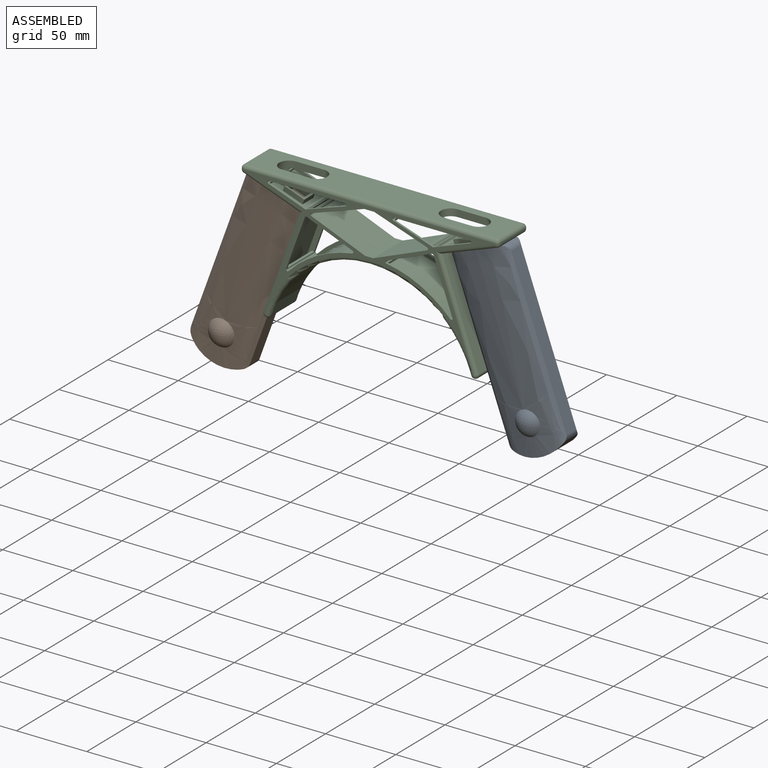
[diagram: assembled view]
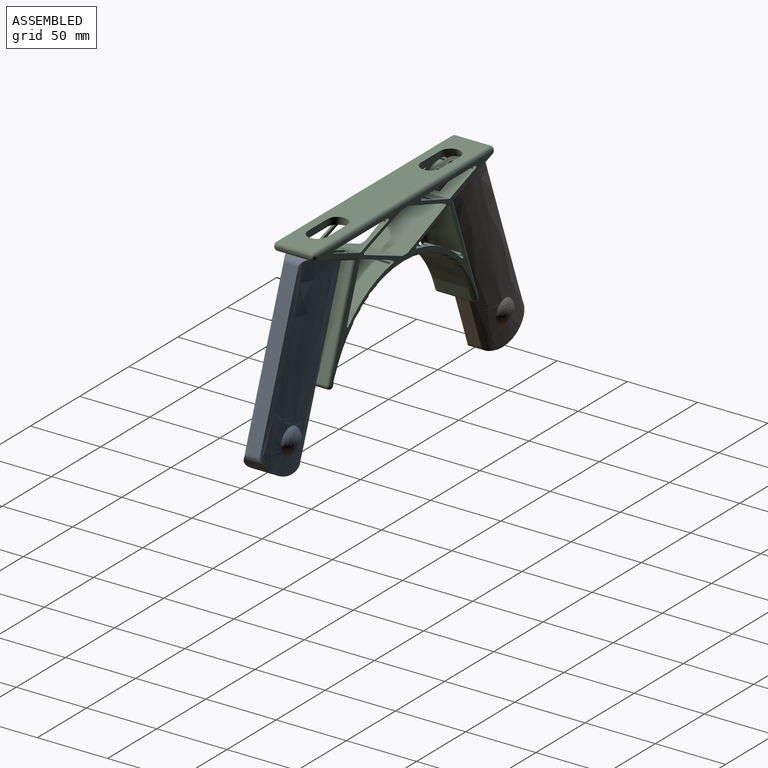
[diagram: assembled view, second angle]
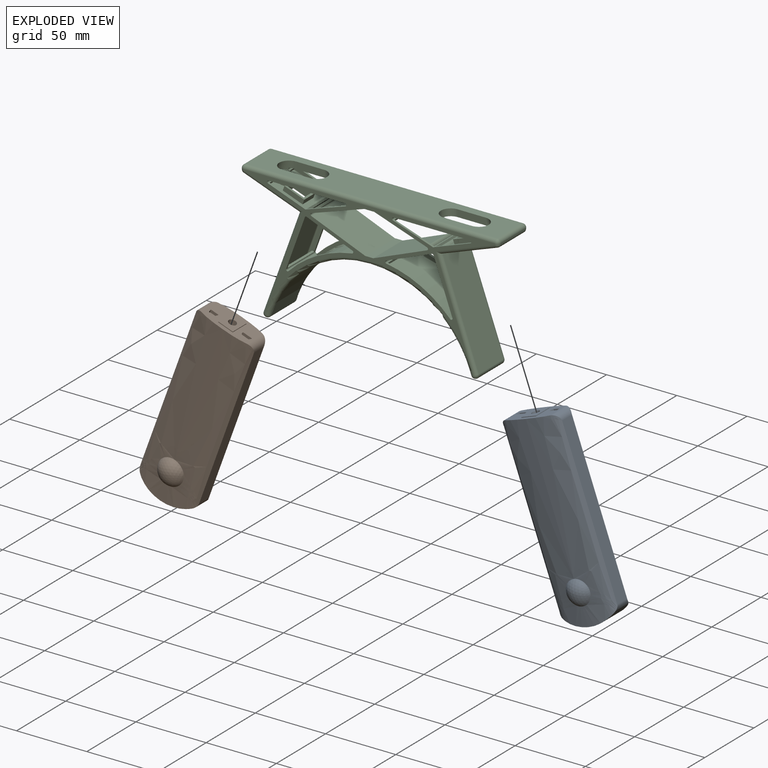
[diagram: exploded view]
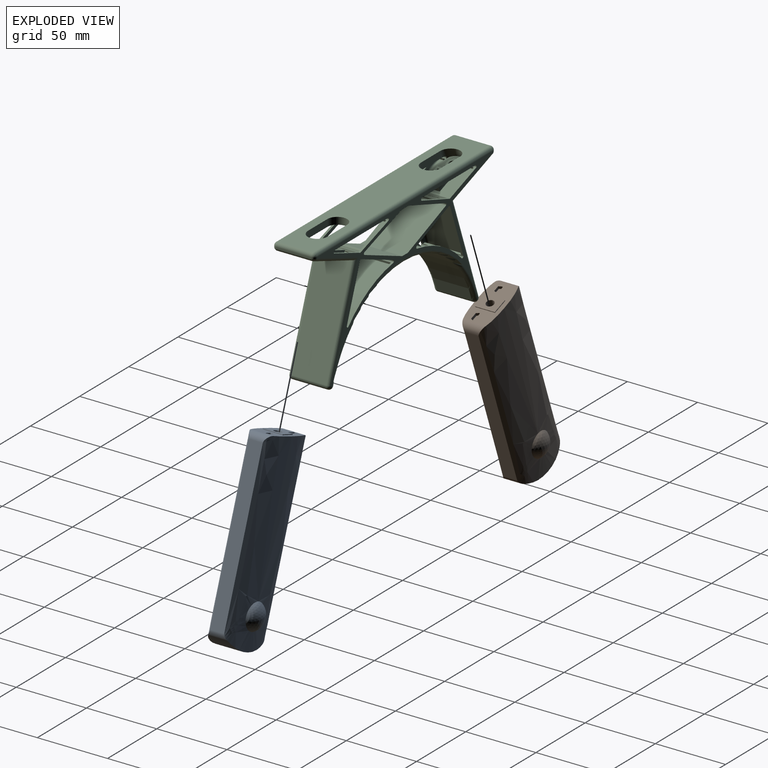
[diagram: exploded view, second angle]
ASSEMBLY  parts=3 mates=2
PART A: 39 faces, bbox 44x30x130.5 mm
  f0: plane 35.12x20mm, normal (0,0,-1), area 461.4mm2, adj f1,f2,f3,f4,f6,f11,f14,f15
  f1: extruded ~130x22mm, area 2824.6mm2, adj f0,f2,f5,f9,f10,f11,f13
  f2: extruded ~130x22mm, area 2824.6mm2, adj f0,f1,f5,f6,f7,f8,f13
  f3: extruded ~130x22mm, area 2807.5mm2, adj f0,f4,f5,f9,f10,f11,f12
  f4: extruded ~130x22mm, area 2807.5mm2, adj f0,f3,f5,f6,f7,f8,f12
  f5: cylinder r=34.25mm len=39.81mm, axis (0,1,0), area 780.4mm2, adj f1,f2,f3,f4,f8,f9
  f6: cylinder r=5mm len=16.43mm, axis (0,1,0), area 103.8mm2, adj f0,f2,f4,f7
  f7: plane 114.55x10mm, normal (1,0,0), area 1145.5mm2, adj f2,f4,f6,f8
  f8: cylinder r=5mm len=13.92mm, axis (0,1,0), area 56.8mm2, adj f2,f4,f5,f7
  f9: cylinder r=5mm len=13.92mm, axis (0,1,0), area 56.8mm2, adj f1,f3,f5,f10
  f10: plane 114.55x10mm, normal (-1,0,0), area 1145.5mm2, adj f1,f3,f9,f11
  f11: cylinder r=5mm len=16.43mm, axis (0,1,0), area 103.8mm2, adj f0,f1,f3,f10
  f12: sphere r=10.5mm, area 375.2mm2, adj f3,f4
  f13: sphere r=10.5mm, area 307.6mm2, adj f1,f2
  f14: plane 14x0.5mm, normal (1,0,0), area 7mm2, adj f0,f15,f18,f19
  f15: plane 11x0.5mm, normal (0,-1,0), area 5.5mm2, adj f0,f14,f16,f19
  f16: plane 14x0.5mm, normal (-1,0,0), area 7mm2, adj f0,f15,f18,f19
  f17: cylinder r=2.75mm len=5.5mm, axis (0,0,1), area 95mm2, adj f19,f20
  f18: plane 11x0.5mm, normal (0,1,0), area 5.5mm2, adj f0,f14,f16,f19
  f19: plane 14x11mm, normal (0,0,-1), area 130.2mm2, adj f14,f15,f16,f17,f18
  f20: plane 5.5x5.5mm, normal (0,0,-1), area 23.8mm2, adj f17
  f21: cylinder r=0.5mm len=2mm, axis (0,0,-1), area 1.8mm2, adj f0,f22,f28,f29
  f22: plane 2x2mm, normal (-0.97,0.26,0), area 4.1mm2, adj f0,f21,f23,f29
  f23: cylinder r=0.5mm len=2mm, axis (0,0,-1), area 1.3mm2, adj f0,f22,f24,f29
  f24: plane 3.63x2mm, normal (0,1,0), area 7.2mm2, adj f0,f23,f25,f29
  f25: cylinder r=0.5mm len=2mm, axis (0,0,-1), area 1.3mm2, adj f0,f24,f26,f29
  f26: plane 2x2mm, normal (0.97,0.26,0), area 4.1mm2, adj f0,f25,f27,f29
  f27: cylinder r=0.5mm len=2mm, axis (0,0,-1), area 1.8mm2, adj f0,f26,f28,f29
  f28: plane 4.7x2mm, normal (0,-1,0), area 9.4mm2, adj f0,f21,f27,f29
  f29: plane 5.7x3mm, normal (0,0,-1), area 15.3mm2, adj f21,f22,f23,f24,f25,f26,f27,f28
  f30: cylinder r=0.5mm len=2mm, axis (0,0,-1), area 2mm2, adj f0,f31,f37,f38
  f31: plane 2x1.5mm, normal (-0.91,0.42,0), area 3.3mm2, adj f0,f30,f32,f38
  f32: cylinder r=0.5mm len=2mm, axis (0,0,-1), area 1.1mm2, adj f0,f31,f33,f38
  f33: plane 4.53x2mm, normal (0,1,0), area 9.1mm2, adj f0,f32,f34,f38
  f34: cylinder r=0.5mm len=2mm, axis (0,0,-1), area 1.1mm2, adj f0,f33,f35,f38
  f35: plane 2x1.5mm, normal (0.91,0.42,0), area 3.3mm2, adj f0,f34,f36,f38
  f36: cylinder r=0.5mm len=2mm, axis (0,0,-1), area 2mm2, adj f0,f35,f37,f38
  f37: plane 5.93x2mm, normal (0,-1,0), area 11.9mm2, adj f0,f30,f36,f38
  f38: plane 6.93x2.5mm, normal (0,0,-1), area 15.5mm2, adj f30,f31,f32,f33,f34,f35,f36,f37
PART B: same geometry as A
PART C: 282 faces, bbox 183.8x30x96.7 mm
  f0: plane 32.48x13.03mm, normal (-0.37,0,-0.93), area 52.5mm2, adj f29,f92,f93,f183
  f1: plane 28.21x9.56mm, normal (-0.32,0,0.95), area 44.7mm2, adj f29,f87,f88,f183
  f2: plane 37.55x12.73mm, normal (0.32,0,-0.95), area 59.5mm2, adj f29,f102,f105,f183
  f3: plane 37.55x12.73mm, normal (-0.32,0,-0.95), area 59.5mm2, adj f29,f101,f106,f183
  f4: plane 28.21x9.56mm, normal (0.32,0,0.95), area 44.7mm2, adj f29,f117,f118,f183
  f5: plane 32.48x13.03mm, normal (0.37,0,-0.93), area 52.5mm2, adj f29,f110,f111,f183
  f6: plane 36.81x13.4mm, normal (-0.94,0,-0.34), area 58.8mm2, adj f29,f111,f112,f183
  f7: plane 25.46x9.27mm, normal (-0.34,0,0.94), area 40.6mm2, adj f18,f29,f115,f183
  f8: plane 14.1x11mm, normal (-0.34,0,0.94), area 69mm2, adj f123,f124,f125,f126,f267,f268,f269,f270
  f9: plane 9x8.46mm, normal (-0.34,0,0.94), area 35.3mm2, adj f19,f173
  f10: plane 36.81x13.4mm, normal (0.94,0,-0.34), area 58.8mm2, adj f29,f92,f94,f183
  f11: plane 25.46x9.27mm, normal (0.34,0,0.94), area 40.6mm2, adj f21,f29,f85,f183
  f12: plane 9x8.46mm, normal (0.34,0,0.94), area 35.3mm2, adj f22,f176
  f13: plane 14.1x11mm, normal (0.34,0,0.94), area 69mm2, adj f119,f120,f121,f122,f263,f264,f265,f266
  f14: cylinder r=80mm len=45.31mm, axis (0,-1,0), area 77.9mm2, adj f29,f93,f94,f183
  f15: cylinder r=80mm len=45.31mm, axis (0,-1,0), area 77.9mm2, adj f29,f110,f112,f183
  f16: cylinder r=7mm len=14mm, axis (0.34,0,-0.94), area 134.4mm2, adj f17,f18,f23,f116,f128,f130,f258
  f17: cylinder r=1mm len=8.72mm, axis (0,-1,0), area 24mm2, adj f16,f27,f114,f116,f154,f258
  f18: cylinder r=1mm len=8.72mm, axis (0,-1,0), area 24mm2, adj f7,f16,f29,f116,f155,f258
  f19: cylinder r=3mm len=7.35mm, axis (0.34,0,-0.94), area 94.2mm2, adj f9,f35
  f20: cylinder r=1mm len=8.72mm, axis (0,-1,0), area 24mm2, adj f25,f26,f27,f127,f150,f180
  f21: cylinder r=1mm len=8.72mm, axis (0,-1,0), area 24mm2, adj f11,f25,f29,f127,f149,f180
  f22: cylinder r=3mm len=7.35mm, axis (-0.34,0,-0.94), area 94.2mm2, adj f12,f24
  f23: plane 178.81x25mm, normal (0,0,1), area 3601.2mm2, adj f16,f41,f44,f48,f49,f127,f129,f131
  f24: plane 39.7x25mm, normal (-0.34,0,-0.94), area 932mm2, adj f22,f38,f58,f64,f67,f119,f120,f121
  f25: plane 54.3x30.02mm, normal (0,0,-1), area 1215mm2, adj f20,f21,f27,f29,f87,f127,f133,f134
  f26: plane 25.46x9.27mm, normal (0.34,0,0.94), area 40.6mm2, adj f20,f27,f85,f181
  f27: plane 178.81x86.04mm, normal (0,1,0), area 1739.9mm2, adj f17,f20,f25,f26,f47,f48,f56,f57
  f28: plane 3.25x1.17mm, normal (0,-1,0), area 0.1mm2, adj f60,f69,f79
  f29: plane 178.81x86.04mm, normal (0,-1,0), area 1739.9mm2, adj f0,f1,f2,f3,f4,f5,f6,f7
  f30: plane 3.25x1.17mm, normal (0,1,0), area 0.1mm2, adj f62,f71,f80
  f31: plane 25x0.07mm, normal (-0.34,0,-0.94), area 1.9mm2, adj f73,f78,f81,f84
  f32: cylinder r=75mm len=143.09mm, axis (0,1,0), area 4747.5mm2, adj f70,f79,f80,f84
  f33: plane 25x0.07mm, normal (0.34,0,-0.94), area 1.9mm2, adj f61,f69,f70,f71
  f34: plane 70.86x25.79mm, normal (0.94,0,0.34), area 1885.2mm2, adj f35,f60,f61,f62
  f35: plane 39.7x25mm, normal (0.34,0,-0.94), area 932mm2, adj f19,f34,f46,f55,f56,f123,f124,f125
  f36: plane 25x0.75mm, normal (1,0,0), area 18.7mm2, adj f41,f45,f46,f47
  f37: plane 25x0.75mm, normal (-1,0,0), area 18.7mm2, adj f49,f54,f57,f58
  f38: plane 70.86x25.79mm, normal (-0.94,0,0.34), area 1885.2mm2, adj f24,f68,f72,f73
  f39: plane 3.25x1.17mm, normal (0,-1,0), area 0.1mm2, adj f68,f78,f79
  f40: plane 3.25x1.17mm, normal (0,1,0), area 0.1mm2, adj f72,f80,f81
  f41: cylinder r=2.5mm len=25mm, axis (0,1,0), area 98.2mm2, adj f23,f36,f42,f43
  f42: sphere r=2.5mm, area 9.8mm2, adj f41,f44,f45
  f43: sphere r=2.5mm, area 9.8mm2, adj f41,f47,f48
  f44: cylinder r=2.5mm len=178.81mm, axis (1,0,0), area 702.2mm2, adj f23,f29,f42,f50
  f45: cylinder r=2.5mm len=2.5mm, axis (0,0,-1), area 2.9mm2, adj f29,f36,f42,f51
  f46: cylinder r=2.5mm len=25mm, axis (0,-1,0), area 76.4mm2, adj f35,f36,f51,f52
  f47: cylinder r=2.5mm len=2.5mm, axis (0,0,1), area 2.9mm2, adj f27,f36,f43,f52
  f48: cylinder r=2.5mm len=178.81mm, axis (-1,0,0), area 702.2mm2, adj f23,f27,f43,f53
  f49: cylinder r=2.5mm len=25mm, axis (0,-1,0), area 98.2mm2, adj f23,f37,f50,f53
  f50: sphere r=2.5mm, area 9.8mm2, adj f44,f49,f54
  f51: sphere r=2.5mm, area 7.6mm2, adj f45,f46,f55
  f52: sphere r=2.5mm, area 7.6mm2, adj f46,f47,f56
  f53: sphere r=2.5mm, area 9.8mm2, adj f48,f49,f57
  f54: cylinder r=2.5mm len=2.5mm, axis (0,0,1), area 2.9mm2, adj f29,f37,f50,f59
  f55: cylinder r=2.5mm len=42.91mm, axis (-0.94,0,-0.34), area 169.5mm2, adj f29,f35,f51,f60
  f56: cylinder r=2.5mm len=42.91mm, axis (0.94,0,0.34), area 169.5mm2, adj f27,f35,f52,f62
  f57: cylinder r=2.5mm len=2.5mm, axis (0,0,-1), area 2.9mm2, adj f27,f37,f53,f63
  f58: cylinder r=2.5mm len=25mm, axis (0,-1,0), area 76.4mm2, adj f24,f37,f59,f63
  f59: sphere r=2.5mm, area 7.6mm2, adj f54,f58,f64
  f60: cylinder r=2.5mm len=74.06mm, axis (0.34,0,-0.94), area 299.7mm2, adj f28,f29,f34,f55,f65
  f61: cylinder r=2.5mm len=25mm, axis (0,1,0), area 98.2mm2, adj f33,f34,f65,f66
  f62: cylinder r=2.5mm len=74.06mm, axis (-0.34,0,0.94), area 299.7mm2, adj f27,f30,f34,f56,f66
  f63: sphere r=2.5mm, area 7.6mm2, adj f57,f58,f67
  f64: cylinder r=2.5mm len=42.91mm, axis (-0.94,0,0.34), area 169.5mm2, adj f24,f29,f59,f68
  f65: sphere r=2.5mm, area 9.8mm2, adj f60,f61,f69
  f66: sphere r=2.5mm, area 9.8mm2, adj f61,f62,f71
  f67: cylinder r=2.5mm len=42.91mm, axis (0.94,0,-0.34), area 169.5mm2, adj f24,f27,f63,f72
  f68: cylinder r=2.5mm len=74.06mm, axis (0.34,0,0.94), area 299.7mm2, adj f29,f38,f39,f64,f74
  f69: cylinder r=2.5mm len=2.5mm, axis (-0.94,0,-0.34), area 0.3mm2, adj f28,f33,f65,f75
  f70: cylinder r=2.5mm len=25mm, axis (0,1,0), area 100.9mm2, adj f32,f33,f75,f76
  f71: cylinder r=2.5mm len=2.5mm, axis (0.94,0,0.34), area 0.3mm2, adj f30,f33,f66,f76
  f72: cylinder r=2.5mm len=74.06mm, axis (-0.34,0,-0.94), area 299.7mm2, adj f27,f38,f40,f67,f77
  f73: cylinder r=2.5mm len=25mm, axis (0,1,0), area 98.2mm2, adj f31,f38,f74,f77
  f74: sphere r=2.5mm, area 9.8mm2, adj f68,f73,f78
  f75: sphere r=2.5mm, area 10.1mm2, adj f69,f70,f79
  f76: sphere r=2.5mm, area 10.1mm2, adj f70,f71,f80
  f77: sphere r=2.5mm, area 9.8mm2, adj f72,f73,f81
  f78: cylinder r=2.5mm len=2.5mm, axis (-0.94,0,0.34), area 0.3mm2, adj f31,f39,f74,f82
  f79: torus R=77.5mm, axis (0,-1,0), area 754.8mm2, adj f28,f29,f32,f39,f75,f82
  f80: torus R=77.5mm, axis (0,-1,0), area 754.8mm2, adj f27,f30,f32,f40,f76,f83
  f81: cylinder r=2.5mm len=2.5mm, axis (0.94,0,-0.34), area 0.3mm2, adj f31,f40,f77,f83
  f82: sphere r=2.5mm, area 10.1mm2, adj f78,f79,f84
  f83: sphere r=2.5mm, area 10.1mm2, adj f80,f81,f84
  f84: cylinder r=2.5mm len=25mm, axis (0,1,0), area 100.9mm2, adj f31,f32,f82,f83
  f85: cylinder r=2.5mm len=30mm, axis (0,1,0), area 14.7mm2, adj f11,f26,f27,f29,f88,f148
  f86: plane 28.21x9.56mm, normal (-0.32,0,0.95), area 44.7mm2, adj f27,f87,f88,f181
  f87: cylinder r=1mm len=30mm, axis (0,-1,0), area 84.4mm2, adj f1,f25,f27,f29,f86,f166
  f88: cylinder r=1mm len=30mm, axis (0,1,0), area 26.2mm2, adj f1,f27,f29,f85,f86,f167
  f89: plane 32.48x13.03mm, normal (-0.37,0,-0.93), area 52.5mm2, adj f27,f92,f93,f181
  f90: cylinder r=80mm len=45.31mm, axis (0,-1,0), area 77.9mm2, adj f27,f93,f94,f181
  f91: plane 36.81x13.4mm, normal (0.94,0,-0.34), area 58.8mm2, adj f27,f92,f94,f181
  f92: cylinder r=1mm len=30mm, axis (0,-1,0), area 48.1mm2, adj f0,f10,f27,f29,f89,f91,f152,f168
  f93: cylinder r=1mm len=30mm, axis (0,-1,0), area 78.2mm2, adj f0,f14,f27,f29,f89,f90,f146,f169
  f94: cylinder r=1mm len=30mm, axis (0,-1,0), area 81.7mm2, adj f10,f14,f27,f29,f90,f91,f147,f151
  f95: cylinder r=80mm len=30mm, axis (0,-1,0), area 152.9mm2, adj f27,f29,f103,f104
  f96: plane 30x6.63mm, normal (0,0,-1), area 198.9mm2, adj f27,f29,f101,f102
  f97: plane 38.29x30mm, normal (-0.37,0,0.93), area 1237.6mm2, adj f27,f29,f104,f106
  f98: plane 37.55x12.73mm, normal (-0.32,0,-0.95), area 59.5mm2, adj f27,f101,f106,f181
  f99: plane 37.55x12.73mm, normal (0.32,0,-0.95), area 59.5mm2, adj f27,f102,f105,f181
  f100: plane 38.29x30mm, normal (0.37,0,0.93), area 1237.6mm2, adj f27,f29,f103,f105
  f101: cylinder r=1mm len=30mm, axis (0,-1,0), area 9.8mm2, adj f3,f27,f29,f96,f98,f162
  f102: cylinder r=1mm len=30mm, axis (0,1,0), area 9.8mm2, adj f2,f27,f29,f96,f99,f165
  f103: cylinder r=1mm len=30mm, axis (0,-1,0), area 12.4mm2, adj f27,f29,f95,f100
  f104: cylinder r=1mm len=30mm, axis (0,-1,0), area 12.4mm2, adj f27,f29,f95,f97
  f105: cylinder r=1mm len=30mm, axis (0,-1,0), area 73mm2, adj f2,f27,f29,f99,f100,f164
  f106: cylinder r=1mm len=30mm, axis (0,-1,0), area 73mm2, adj f3,f27,f29,f97,f98,f163
  f107: plane 32.48x13.03mm, normal (0.37,0,-0.93), area 52.5mm2, adj f27,f110,f111,f181
  f108: plane 36.81x13.4mm, normal (-0.94,0,-0.34), area 58.8mm2, adj f27,f111,f112,f181
  f109: cylinder r=80mm len=45.31mm, axis (0,-1,0), area 77.9mm2, adj f27,f110,f112,f181
  f110: cylinder r=1mm len=30mm, axis (0,-1,0), area 78.2mm2, adj f5,f15,f27,f29,f107,f109,f145,f158
  f111: cylinder r=1mm len=30mm, axis (0,1,0), area 48.1mm2, adj f5,f6,f27,f29,f107,f108,f156,f159
  f112: cylinder r=1mm len=30mm, axis (0,-1,0), area 81.7mm2, adj f6,f15,f27,f29,f108,f109,f144,f157
  f113: plane 28.21x9.56mm, normal (0.32,0,0.95), area 44.7mm2, adj f27,f117,f118,f181
  f114: plane 25.46x9.27mm, normal (-0.34,0,0.94), area 40.6mm2, adj f17,f27,f115,f181
  f115: cylinder r=2.5mm len=30mm, axis (0,1,0), area 14.7mm2, adj f7,f27,f29,f114,f118,f153
  f116: plane 54.3x30.02mm, normal (0,0,-1), area 1215mm2, adj f16,f17,f18,f27,f29,f117,f128,f129
  f117: cylinder r=1mm len=30mm, axis (0,1,0), area 84.4mm2, adj f4,f27,f29,f113,f116,f161
  f118: cylinder r=1mm len=30mm, axis (0,1,0), area 26.2mm2, adj f4,f27,f29,f113,f115,f160
  f119: plane 8x4.7mm, normal (0.94,0,-0.34), area 40mm2, adj f13,f24,f120,f122
  f120: plane 12.99x8.8mm, normal (0,1,0), area 60mm2, adj f13,f24,f119,f121
  f121: plane 8x4.7mm, normal (-0.94,0,0.34), area 40mm2, adj f13,f24,f120,f122
  f122: plane 12.99x8.8mm, normal (0,-1,0), area 60mm2, adj f13,f24,f119,f121
  f123: plane 12.99x8.8mm, normal (0,1,0), area 60mm2, adj f8,f35,f124,f125
  f124: plane 8x4.7mm, normal (-0.94,0,-0.34), area 40mm2, adj f8,f35,f123,f126
  f125: plane 8x4.7mm, normal (0.94,0,0.34), area 40mm2, adj f8,f35,f123,f126
  f126: plane 12.99x8.8mm, normal (0,-1,0), area 60mm2, adj f8,f35,f124,f125
  f127: cylinder r=7mm len=14mm, axis (-0.34,0,-0.94), area 134.4mm2, adj f20,f21,f23,f25,f133,f134,f180
  f128: cylinder r=7mm len=5mm, axis (0,0,1), area 2.2mm2, adj f16,f116,f131
  f129: plane 19.69x5mm, normal (0,1,0), area 98.4mm2, adj f23,f116,f130,f132
  f130: cylinder r=7mm len=5mm, axis (0,0,1), area 2.2mm2, adj f16,f116,f129
  f131: plane 19.69x5mm, normal (0,-1,0), area 98.4mm2, adj f23,f116,f128,f132
  f132: cylinder r=7mm len=14mm, axis (0,0,1), area 110mm2, adj f23,f116,f129,f131
  f133: cylinder r=7mm len=5mm, axis (0,0,1), area 2.2mm2, adj f25,f127,f135
  f134: cylinder r=7mm len=5mm, axis (0,0,1), area 2.2mm2, adj f25,f127,f136
  f135: plane 19.69x5mm, normal (0,-1,0), area 98.4mm2, adj f23,f25,f133,f137
  f136: plane 19.69x5mm, normal (0,1,0), area 98.4mm2, adj f23,f25,f134,f137
  f137: cylinder r=7mm len=14mm, axis (0,0,1), area 110mm2, adj f23,f25,f135,f136
  f138: plane 30.15x27mm, normal (0.37,0,-0.93), area 877.1mm2, adj f158,f181,f183,f254
  f139: plane 27x6.75mm, normal (-0.37,0,-0.93), area 196.2mm2, adj f181,f183,f243,f251
  f140: cylinder r=8.5mm len=2.67mm, axis (-0.34,0,-0.94), area 2.7mm2, adj f149,f175,f180
  f141: cylinder r=8.5mm len=2.67mm, axis (-0.34,0,-0.94), area 2.7mm2, adj f150,f174,f180
  f142: cylinder r=8.5mm len=2.67mm, axis (0.34,0,-0.94), area 2.7mm2, adj f154,f171,f258
  f143: cylinder r=8.5mm len=2.67mm, axis (0.34,0,-0.94), area 2.7mm2, adj f155,f172,f258
  f144: plane 27x1.08mm, normal (-0.69,0,0.72), area 40.5mm2, adj f112,f181,f183,f257
  f145: plane 27x1.48mm, normal (0.99,0,-0.15), area 40.5mm2, adj f110,f181,f183,f255
  f146: plane 27x1.48mm, normal (-0.99,0,-0.15), area 40.5mm2, adj f93,f181,f183,f243
  f147: plane 27x1.08mm, normal (0.69,0,0.72), area 40.5mm2, adj f94,f181,f183,f244
  f148: plane 27x1.41mm, normal (-0.94,0,0.34), area 40.5mm2, adj f85,f181,f183,f239
  f149: plane 5.26x1.41mm, normal (0.94,0,-0.34), area 7.9mm2, adj f21,f140,f175,f183
  f150: plane 5.26x1.41mm, normal (0.94,0,-0.34), area 7.9mm2, adj f20,f141,f174,f181
  f151: plane 27x1.41mm, normal (0.34,0,0.94), area 40.5mm2, adj f94,f181,f183,f244
  f152: plane 27x1.41mm, normal (-0.34,0,-0.94), area 40.5mm2, adj f92,f181,f183,f242
  f153: plane 27x1.41mm, normal (0.94,0,0.34), area 40.5mm2, adj f115,f181,f183,f259
  f154: plane 5.26x1.41mm, normal (-0.94,0,-0.34), area 7.9mm2, adj f17,f142,f171,f181
  f155: plane 5.26x1.41mm, normal (-0.94,0,-0.34), area 7.9mm2, adj f18,f143,f172,f183
  f156: plane 27x1.41mm, normal (0.34,0,-0.94), area 40.5mm2, adj f111,f181,f183,f256
  f157: plane 27x1.41mm, normal (-0.34,0,0.94), area 40.5mm2, adj f112,f181,f183,f257
  f158: plane 27x0.93mm, normal (0.93,0,0.37), area 27mm2, adj f110,f138,f181,f183
  f159: plane 27x1.39mm, normal (-0.93,0,-0.37), area 40.5mm2, adj f111,f181,f183,f256
  f160: plane 27x1.42mm, normal (-0.95,0,0.32), area 40.5mm2, adj f118,f181,f183,f262
  f161: plane 27x1.42mm, normal (0.95,0,-0.32), area 40.5mm2, adj f117,f181,f183,f261
  f162: plane 27x1.42mm, normal (0.95,0,-0.32), area 40.5mm2, adj f101,f181,f183,f249
  f163: plane 27x1.42mm, normal (-0.95,0,0.32), area 40.5mm2, adj f106,f181,f183,f254
  f164: plane 27x1.42mm, normal (0.95,0,0.32), area 40.5mm2, adj f105,f181,f183,f253
  f165: plane 27x1.42mm, normal (-0.95,0,-0.32), area 40.5mm2, adj f102,f181,f183,f250
  f166: plane 27x1.42mm, normal (-0.95,0,-0.32), area 40.5mm2, adj f87,f181,f183,f240
  f167: plane 27x1.42mm, normal (0.95,0,0.32), area 40.5mm2, adj f88,f181,f183,f241
  f168: plane 27x1.39mm, normal (0.93,0,-0.37), area 40.5mm2, adj f92,f181,f183,f242
  f169: plane 27x0.93mm, normal (-0.93,0,0.37), area 27mm2, adj f93,f181,f183,f248
  f170: cylinder r=8.5mm len=17mm, axis (0.34,0,-0.94), area 91mm2, adj f171,f172,f177,f258,f260,f272,f274
  f171: cylinder r=2.5mm len=6.35mm, axis (0,-1,0), area 41.5mm2, adj f142,f154,f170,f181,f260
  f172: cylinder r=2.5mm len=6.35mm, axis (0,-1,0), area 41.5mm2, adj f143,f155,f170,f183,f260
  f173: cylinder r=4.5mm len=9.65mm, axis (0.34,0,-0.94), area 99mm2, adj f9,f189
  f174: cylinder r=2.5mm len=6.35mm, axis (0,-1,0), area 41.5mm2, adj f141,f150,f179,f181,f271
  f175: cylinder r=2.5mm len=6.35mm, axis (0,-1,0), area 41.5mm2, adj f140,f149,f179,f183,f271
  f176: cylinder r=4.5mm len=9.65mm, axis (-0.34,0,-0.94), area 99mm2, adj f12,f178
  f177: plane 178.81x25mm, normal (0,0,-1), area 3313.7mm2, adj f170,f195,f198,f202,f203,f271,f272,f273
  f178: plane 41.11x25mm, normal (0.34,0,0.94), area 865.1mm2, adj f176,f192,f212,f218,f221,f263,f264,f265
  f179: plane 54.3x27.02mm, normal (0,0,1), area 943.6mm2, adj f174,f175,f181,f183,f240,f271,f277,f278
  f180: plane 16.48x6.02mm, normal (-0.34,0,-0.94), area 30.2mm2, adj f20,f21,f127,f140,f141,f271
  f181: plane 178.81x86.04mm, normal (0,-1,0), area 1348.7mm2, adj f26,f86,f89,f90,f91,f98,f99,f107
  f182: plane 3.25x1.17mm, normal (0,1,0), area 0.1mm2, adj f214,f223,f233
  f183: plane 178.81x86.04mm, normal (0,1,0), area 1348.7mm2, adj f0,f1,f2,f3,f4,f5,f6,f7
  f184: plane 3.25x1.17mm, normal (0,-1,0), area 0.1mm2, adj f216,f225,f234
  f185: plane 25x0.07mm, normal (0.34,0,0.94), area 1.9mm2, adj f227,f232,f235,f238
  f186: cylinder r=76.5mm len=145.95mm, axis (0,1,0), area 4842.4mm2, adj f224,f233,f234,f238
  f187: plane 25x0.07mm, normal (-0.34,0,0.94), area 1.9mm2, adj f215,f223,f224,f225
  f188: plane 72.27x26.3mm, normal (-0.94,0,-0.34), area 1922.7mm2, adj f189,f214,f215,f216
  f189: plane 41.11x25mm, normal (-0.34,0,0.94), area 865.1mm2, adj f173,f188,f200,f209,f210,f267,f268,f269
  f190: plane 25x0.75mm, normal (-1,0,0), area 18.7mm2, adj f195,f199,f200,f201
  f191: plane 25x0.75mm, normal (1,0,0), area 18.7mm2, adj f203,f208,f211,f212
  f192: plane 72.27x26.3mm, normal (0.94,0,-0.34), area 1922.7mm2, adj f178,f222,f226,f227
  f193: plane 3.25x1.17mm, normal (0,1,0), area 0.1mm2, adj f222,f232,f233
  f194: plane 3.25x1.17mm, normal (0,-1,0), area 0.1mm2, adj f226,f234,f235
  f195: cylinder r=1mm len=25mm, axis (0,1,0), area 39.3mm2, adj f177,f190,f196,f197
  f196: sphere r=1mm, area 1.6mm2, adj f195,f198,f199
  f197: sphere r=1mm, area 1.6mm2, adj f195,f201,f202
  f198: cylinder r=1mm len=178.81mm, axis (1,0,0), area 280.9mm2, adj f177,f183,f196,f204
  f199: cylinder r=1mm len=1mm, axis (0,0,-1), area 1.2mm2, adj f183,f190,f196,f205
  f200: cylinder r=1mm len=25mm, axis (0,-1,0), area 30.5mm2, adj f189,f190,f205,f206
  f201: cylinder r=1mm len=1mm, axis (0,0,1), area 1.2mm2, adj f181,f190,f197,f206
  f202: cylinder r=1mm len=178.81mm, axis (-1,0,0), area 280.9mm2, adj f177,f181,f197,f207
  f203: cylinder r=1mm len=25mm, axis (0,-1,0), area 39.3mm2, adj f177,f191,f204,f207
  f204: sphere r=1mm, area 1.6mm2, adj f198,f203,f208
  f205: sphere r=1mm, area 1.2mm2, adj f199,f200,f209
  f206: sphere r=1mm, area 1.2mm2, adj f200,f201,f210
  f207: sphere r=1mm, area 1.6mm2, adj f202,f203,f211
  f208: cylinder r=1mm len=1mm, axis (0,0,1), area 1.2mm2, adj f183,f191,f204,f213
  f209: cylinder r=1mm len=42.39mm, axis (-0.94,0,-0.34), area 69.3mm2, adj f183,f189,f205,f214
  f210: cylinder r=1mm len=42.39mm, axis (0.94,0,0.34), area 69.3mm2, adj f181,f189,f206,f216
  f211: cylinder r=1mm len=1mm, axis (0,0,-1), area 1.2mm2, adj f181,f191,f207,f217
  f212: cylinder r=1mm len=25mm, axis (0,-1,0), area 30.5mm2, adj f178,f191,f213,f217
  f213: sphere r=1mm, area 1.2mm2, adj f208,f212,f218
  f214: cylinder r=1mm len=73.55mm, axis (0.34,0,-0.94), area 121.4mm2, adj f182,f183,f188,f209,f219
  f215: cylinder r=1mm len=25mm, axis (0,1,0), area 39.3mm2, adj f187,f188,f219,f220
  f216: cylinder r=1mm len=73.55mm, axis (-0.34,0,0.94), area 121.4mm2, adj f181,f184,f188,f210,f220
  f217: sphere r=1mm, area 1.2mm2, adj f211,f212,f221
  f218: cylinder r=1mm len=42.39mm, axis (-0.94,0,0.34), area 69.3mm2, adj f178,f183,f213,f222
  f219: sphere r=1mm, area 1.6mm2, adj f214,f215,f223
  f220: sphere r=1mm, area 1.6mm2, adj f215,f216,f225
  f221: cylinder r=1mm len=42.39mm, axis (0.94,0,-0.34), area 69.3mm2, adj f178,f181,f217,f226
  f222: cylinder r=1mm len=73.55mm, axis (0.34,0,0.94), area 121.4mm2, adj f183,f192,f193,f218,f228
  f223: cylinder r=1mm len=1mm, axis (-0.94,0,-0.34), area 0.1mm2, adj f182,f187,f219,f229
  f224: cylinder r=1mm len=25mm, axis (0,1,0), area 40.4mm2, adj f186,f187,f229,f230
  f225: cylinder r=1mm len=1mm, axis (0.94,0,0.34), area 0.1mm2, adj f184,f187,f220,f230
  f226: cylinder r=1mm len=73.55mm, axis (-0.34,0,-0.94), area 121.4mm2, adj f181,f192,f194,f221,f231
  f227: cylinder r=1mm len=25mm, axis (0,1,0), area 39.3mm2, adj f185,f192,f228,f231
  f228: sphere r=1mm, area 1.6mm2, adj f222,f227,f232
  f229: sphere r=1mm, area 1.6mm2, adj f223,f224,f233
  f230: sphere r=1mm, area 1.6mm2, adj f224,f225,f234
  f231: sphere r=1mm, area 1.6mm2, adj f226,f227,f235
  f232: cylinder r=1mm len=1mm, axis (-0.94,0,0.34), area 0.1mm2, adj f185,f193,f228,f236
  f233: torus R=77.5mm, axis (0,-1,0), area 305.7mm2, adj f182,f183,f186,f193,f229,f236
  f234: torus R=77.5mm, axis (0,-1,0), area 305.7mm2, adj f181,f184,f186,f194,f230,f237
  f235: cylinder r=1mm len=1mm, axis (0.94,0,-0.34), area 0.1mm2, adj f185,f194,f231,f237
  f236: sphere r=1mm, area 1.6mm2, adj f232,f233,f238
  f237: sphere r=1mm, area 1.6mm2, adj f234,f235,f238
  f238: cylinder r=1mm len=25mm, axis (0,1,0), area 40.4mm2, adj f185,f186,f236,f237
  f239: cylinder r=1mm len=27mm, axis (0,1,0), area 5.3mm2, adj f148,f181,f183,f241
  f240: cylinder r=2.5mm len=27mm, axis (0,-1,0), area 190mm2, adj f166,f179,f181,f183
  f241: cylinder r=2.5mm len=27mm, axis (0,1,0), area 58.9mm2, adj f167,f181,f183,f239
  f242: cylinder r=2.5mm len=27mm, axis (0,-1,0), area 108.2mm2, adj f152,f168,f181,f183
  f243: cylinder r=2.5mm len=27mm, axis (0,-1,0), area 132.5mm2, adj f139,f146,f181,f183
  f244: cylinder r=2.5mm len=27mm, axis (0,-1,0), area 183.8mm2, adj f147,f151,f181,f183
  f245: cylinder r=78.5mm len=27mm, axis (0,-1,0), area 135mm2, adj f181,f183,f251,f252
  f246: plane 27x6.63mm, normal (0,0,1), area 179.1mm2, adj f181,f183,f249,f250
  f247: plane 27x6.75mm, normal (0.37,0,-0.93), area 196.2mm2, adj f181,f183,f252,f255
  f248: plane 30.15x27mm, normal (-0.37,0,-0.93), area 877.1mm2, adj f169,f181,f183,f253
  f249: cylinder r=2.5mm len=27mm, axis (0,-1,0), area 22.1mm2, adj f162,f181,f183,f246
  f250: cylinder r=2.5mm len=27mm, axis (0,1,0), area 22.1mm2, adj f165,f181,f183,f246
  f251: cylinder r=2.5mm len=27mm, axis (0,-1,0), area 27.9mm2, adj f139,f181,f183,f245
  f252: cylinder r=2.5mm len=27mm, axis (0,-1,0), area 27.9mm2, adj f181,f183,f245,f247
  f253: cylinder r=2.5mm len=27mm, axis (0,-1,0), area 164.2mm2, adj f164,f181,f183,f248
  f254: cylinder r=2.5mm len=27mm, axis (0,-1,0), area 164.2mm2, adj f138,f163,f181,f183
  f255: cylinder r=2.5mm len=27mm, axis (0,-1,0), area 132.5mm2, adj f145,f181,f183,f247
  f256: cylinder r=2.5mm len=27mm, axis (0,1,0), area 108.2mm2, adj f156,f159,f181,f183
  f257: cylinder r=2.5mm len=27mm, axis (0,-1,0), area 183.8mm2, adj f144,f157,f181,f183
  f258: plane 16.48x6.02mm, normal (0.34,0,-0.94), area 30.2mm2, adj f16,f17,f18,f142,f143,f170
  f259: cylinder r=1mm len=27mm, axis (0,1,0), area 5.3mm2, adj f153,f181,f183,f262
  f260: plane 54.3x27.02mm, normal (0,0,1), area 943.6mm2, adj f170,f171,f172,f181,f183,f261,f272,f273
  f261: cylinder r=2.5mm len=27mm, axis (0,1,0), area 190mm2, adj f161,f181,f183,f260
  f262: cylinder r=2.5mm len=27mm, axis (0,1,0), area 58.9mm2, adj f160,f181,f183,f259
  f263: plane 11x3.29mm, normal (-0.94,0,0.34), area 38.5mm2, adj f13,f178,f264,f266
  f264: plane 15.29x8.42mm, normal (0,-1,0), area 52.5mm2, adj f13,f178,f263,f265
  f265: plane 11x3.29mm, normal (0.94,0,-0.34), area 38.5mm2, adj f13,f178,f264,f266
  f266: plane 15.29x8.42mm, normal (0,1,0), area 52.5mm2, adj f13,f178,f263,f265
  f267: plane 15.29x8.42mm, normal (0,-1,0), area 52.5mm2, adj f8,f189,f268,f269
  f268: plane 11x3.29mm, normal (0.94,0,0.34), area 38.5mm2, adj f8,f189,f267,f270
  f269: plane 11x3.29mm, normal (-0.94,0,-0.34), area 38.5mm2, adj f8,f189,f267,f270
  f270: plane 15.29x8.42mm, normal (0,1,0), area 52.5mm2, adj f8,f189,f268,f269
  f271: cylinder r=8.5mm len=17mm, axis (-0.34,0,-0.94), area 91mm2, adj f174,f175,f177,f179,f180,f277,f278
  f272: cylinder r=8.5mm len=2mm, axis (0,0,1), area 0.9mm2, adj f170,f177,f260,f275
  f273: plane 19.69x2mm, normal (0,-1,0), area 39.4mm2, adj f177,f260,f274,f276
  f274: cylinder r=8.5mm len=2mm, axis (0,0,1), area 0.9mm2, adj f170,f177,f260,f273
  f275: plane 19.69x2mm, normal (0,1,0), area 39.4mm2, adj f177,f260,f272,f276
  f276: cylinder r=8.5mm len=17mm, axis (0,0,1), area 53.4mm2, adj f177,f260,f273,f275
  f277: cylinder r=8.5mm len=2mm, axis (0,0,1), area 0.9mm2, adj f177,f179,f271,f279
  f278: cylinder r=8.5mm len=2mm, axis (0,0,1), area 0.9mm2, adj f177,f179,f271,f280
  f279: plane 19.69x2mm, normal (0,1,0), area 39.4mm2, adj f177,f179,f277,f281
  f280: plane 19.69x2mm, normal (0,-1,0), area 39.4mm2, adj f177,f179,f278,f281
  f281: cylinder r=8.5mm len=17mm, axis (0,0,1), area 53.4mm2, adj f177,f179,f279,f280
PLACE A rot(axis=(0.98,0,0.17),180deg) t=(100,-8.1,60.69)mm
PLACE B rot(axis=(0,-1,0),160deg) t=(-85.47,-8.1,60.69)mm
PLACE C t=(7.27,-8.1,15.78)mm
MATE fastened B.f17 <-> C.f127  axis (-0.34,0,-0.94) through (-64.43,-8.1,118.48)mm
MATE fastened A.f17 <-> C.f16  axis (0.34,0,-0.94) through (78.97,-8.1,118.48)mm
